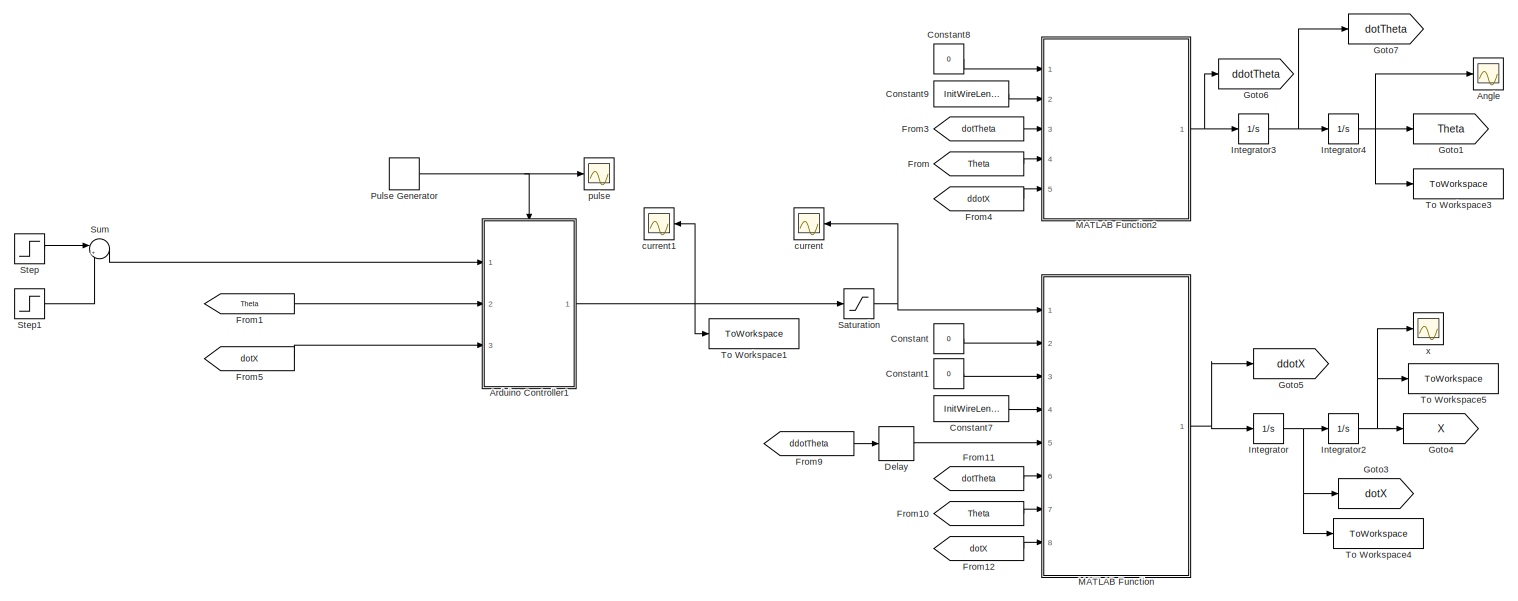
[diagram: root canvas - part 1/2, left side, full height]
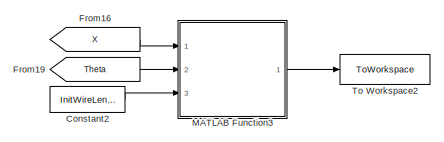
[diagram: root canvas - part 2/2, middle right region]
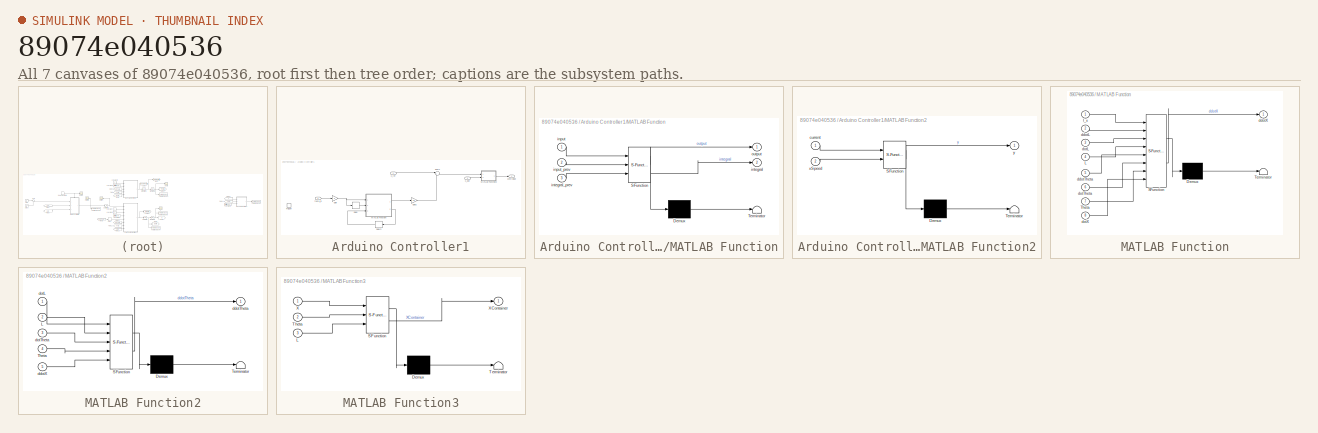
[diagram: thumbnail index - all 7 canvases of the model, root first then tree order]
MODEL slx_89074e040536
KIND model
CONFIG AbsTol = auto
CONFIG EnableMultiTasking = off
CONFIG FixedStep = auto
CONFIG MaxStep = auto
CONFIG MinStep = auto
CONFIG RelTol = 1e-3
CONFIG SampleTimeConstraint = Unconstrained
CONFIG SolverName = VariableStepAuto
CONFIG StartTime = 0.0
CONFIG StopTime = 10.0
BLOCK [Scope] Angle
  Floating = off
  NumInputPorts = 1
  Ports = [1]
  ScopeSpecificationString = Simulink.scopes.TimeScopeBlockCfg('CurrentConfiguration', extmgr.ConfigurationSet(extmgr.Configuration('Core','General UI',true),extmgr.Configuration('Core','Source UI',true),extmgr.Configuration('Sources','WiredSimulink',true,'DataLoggingVariableName','ScopeData1'),extmgr.Configuration('Visuals','Time Domain',true,'SerializedDisplays',{struct('MinYLimReal','-0.23748','MaxYLimReal','0.08037','YLab...<+1424ch>
BLOCK [SubSystem] Arduino Controller1
  Ports = [3, 1, 0, 1]
  RequestExecContextInheritance = off
BLOCK [Delay] Arduino Controller1/Delay
  DelayLength = 1
  InitialCondition = 0
  InputPortMap = u0
  Ports = [1, 1]
BLOCK [Delay] Arduino Controller1/Delay3
  DelayLength = 1
  InitialCondition = 0
  InputPortMap = u0
  NameLocation = top
  Ports = [1, 1]
BLOCK [Gain] Arduino Controller1/Gain
  Gain = -1
BLOCK [Gain] Arduino Controller1/Gain2
  Gain = 18
BLOCK [SubSystem] Arduino Controller1/MATLAB Function
  ErrorFcn = Stateflow.Translate.translate
  PermitHierarchicalResolution = ExplicitOnly
  Ports = [3, 2]
  RequestExecContextInheritance = off
  SFBlockType = MATLAB Function
  TreatAsAtomicUnit = on
BLOCK [Demux] Arduino Controller1/MATLAB Function/ Demux 
  Outputs = 1
  Ports = [1, 1]
BLOCK [S-Function] Arduino Controller1/MATLAB Function/ SFunction 
  EnableBusSupport = on
  FunctionName = sf_sfun
  PortCounts = [3 3]
  Ports = [3, 3]
  SFcnIsStateOwnerBlock = off
  SFunctionDeploymentMode = off
  Tag = Stateflow S-Function 6
BLOCK [Terminator] Arduino Controller1/MATLAB Function/ Terminator 
BLOCK [Inport] Arduino Controller1/MATLAB Function/input
BLOCK [Inport] Arduino Controller1/MATLAB Function/input_prev
  Port = 2
BLOCK [Outport] Arduino Controller1/MATLAB Function/integral
  Port = 2
BLOCK [Inport] Arduino Controller1/MATLAB Function/integral_prev
  Port = 3
BLOCK [Outport] Arduino Controller1/MATLAB Function/output
BLOCK [SubSystem] Arduino Controller1/MATLAB Function2
  ErrorFcn = Stateflow.Translate.translate
  PermitHierarchicalResolution = ExplicitOnly
  Ports = [2, 1]
  RequestExecContextInheritance = off
  SFBlockType = MATLAB Function
  TreatAsAtomicUnit = on
BLOCK [Demux] Arduino Controller1/MATLAB Function2/ Demux 
  Outputs = 1
  Ports = [1, 1]
BLOCK [S-Function] Arduino Controller1/MATLAB Function2/ SFunction 
  EnableBusSupport = on
  FunctionName = sf_sfun
  PortCounts = [2 2]
  Ports = [2, 2]
  SFcnIsStateOwnerBlock = off
  SFunctionDeploymentMode = off
  Tag = Stateflow S-Function 7
BLOCK [Terminator] Arduino Controller1/MATLAB Function2/ Terminator 
BLOCK [Inport] Arduino Controller1/MATLAB Function2/current
BLOCK [Inport] Arduino Controller1/MATLAB Function2/xSpeed
  Port = 2
BLOCK [Outport] Arduino Controller1/MATLAB Function2/y
BLOCK [Sum] Arduino Controller1/Sum1
  Inputs = |+-
  Ports = [2, 1]
BLOCK [TriggerPort] Arduino Controller1/Trigger
  PortDimensions = 1
  Ports = []
  StatesWhenEnabling = held
  VariantControl = (inherit)
BLOCK [Outport] Arduino Controller1/controlOut
BLOCK [Inport] Arduino Controller1/theta_in
  Port = 2
BLOCK [Inport] Arduino Controller1/x_dot
  Port = 3
BLOCK [Inport] Arduino Controller1/x_ref
BLOCK [Constant] Constant
  Value = 0
BLOCK [Constant] Constant1
  Value = 0
BLOCK [Constant] Constant2
  Value = InitWireLength
BLOCK [Constant] Constant7
  Value = InitWireLength
BLOCK [Constant] Constant8
  Value = 0
BLOCK [Constant] Constant9
  Value = InitWireLength
BLOCK [Delay] Delay
  DelayLength = 1
  InitialCondition = 0
  InputPortMap = u0
  Ports = [1, 1]
BLOCK [From] From
  GotoTag = Theta
BLOCK [From] From1
  GotoTag = Theta
BLOCK [From] From10
  GotoTag = Theta
BLOCK [From] From11
  GotoTag = dotTheta
BLOCK [From] From12
  GotoTag = dotX
BLOCK [From] From16
  GotoTag = X
BLOCK [From] From19
  GotoTag = Theta
BLOCK [From] From3
  GotoTag = dotTheta
BLOCK [From] From4
  GotoTag = ddotX
BLOCK [From] From5
  GotoTag = dotX
BLOCK [From] From9
  GotoTag = ddotTheta
BLOCK [Goto] Goto1
  GotoTag = Theta
BLOCK [Goto] Goto3
  GotoTag = dotX
BLOCK [Goto] Goto4
  GotoTag = X
BLOCK [Goto] Goto5
  GotoTag = ddotX
BLOCK [Goto] Goto6
  GotoTag = ddotTheta
BLOCK [Goto] Goto7
  GotoTag = dotTheta
BLOCK [Integrator] Integrator
  Ports = [1, 1]
BLOCK [Integrator] Integrator2
  InitialCondition = InitXPos
  Ports = [1, 1]
BLOCK [Integrator] Integrator3
  Ports = [1, 1]
BLOCK [Integrator] Integrator4
  Ports = [1, 1]
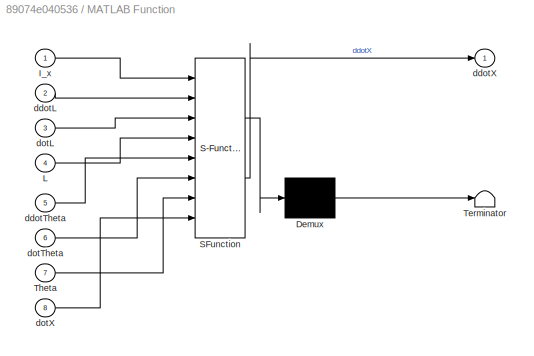
BLOCK [SubSystem] MATLAB Function
  ErrorFcn = Stateflow.Translate.translate
  PermitHierarchicalResolution = ExplicitOnly
  Ports = [8, 1]
  RequestExecContextInheritance = off
  SFBlockType = MATLAB Function
  TreatAsAtomicUnit = on
BLOCK [Demux] MATLAB Function/ Demux 
  Outputs = 1
  Ports = [1, 1]
BLOCK [S-Function] MATLAB Function/ SFunction 
  EnableBusSupport = on
  FunctionName = sf_sfun
  Parameters = B_x,J_x,cFrictionX,k_ex,m_l,m_t,r_x,sFrictionX
  PortCounts = [8 2]
  Ports = [8, 2]
  SFcnIsStateOwnerBlock = off
  SFunctionDeploymentMode = off
  Tag = Stateflow S-Function 2
BLOCK [Terminator] MATLAB Function/ Terminator 
BLOCK [Inport] MATLAB Function/I_x
BLOCK [Inport] MATLAB Function/L
  Port = 4
BLOCK [Inport] MATLAB Function/Theta
  Port = 7
BLOCK [Inport] MATLAB Function/ddotL
  Port = 2
BLOCK [Inport] MATLAB Function/ddotTheta
  Port = 5
BLOCK [Outport] MATLAB Function/ddotX
BLOCK [Inport] MATLAB Function/dotL
  Port = 3
BLOCK [Inport] MATLAB Function/dotTheta
  Port = 6
BLOCK [Inport] MATLAB Function/dotX
  Port = 8
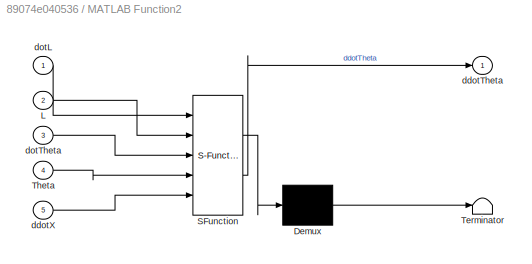
BLOCK [SubSystem] MATLAB Function2
  ErrorFcn = Stateflow.Translate.translate
  PermitHierarchicalResolution = ExplicitOnly
  Ports = [5, 1]
  RequestExecContextInheritance = off
  SFBlockType = MATLAB Function
  TreatAsAtomicUnit = on
BLOCK [Demux] MATLAB Function2/ Demux 
  Outputs = 1
  Ports = [1, 1]
BLOCK [S-Function] MATLAB Function2/ SFunction 
  EnableBusSupport = on
  FunctionName = sf_sfun
  Parameters = g
  PortCounts = [5 2]
  Ports = [5, 2]
  SFcnIsStateOwnerBlock = off
  SFunctionDeploymentMode = off
  Tag = Stateflow S-Function 3
BLOCK [Terminator] MATLAB Function2/ Terminator 
BLOCK [Inport] MATLAB Function2/L
  Port = 2
BLOCK [Inport] MATLAB Function2/Theta
  Port = 4
BLOCK [Outport] MATLAB Function2/ddotTheta
BLOCK [Inport] MATLAB Function2/ddotX
  Port = 5
BLOCK [Inport] MATLAB Function2/dotL
BLOCK [Inport] MATLAB Function2/dotTheta
  Port = 3
BLOCK [SubSystem] MATLAB Function3
  ErrorFcn = Stateflow.Translate.translate
  PermitHierarchicalResolution = ExplicitOnly
  Ports = [3, 1]
  RequestExecContextInheritance = off
  SFBlockType = MATLAB Function
  TreatAsAtomicUnit = on
BLOCK [Demux] MATLAB Function3/ Demux 
  Outputs = 1
  Ports = [1, 1]
BLOCK [S-Function] MATLAB Function3/ SFunction 
  EnableBusSupport = on
  FunctionName = sf_sfun
  PortCounts = [3 2]
  Ports = [3, 2]
  SFcnIsStateOwnerBlock = off
  SFunctionDeploymentMode = off
  Tag = Stateflow S-Function 4
BLOCK [Terminator] MATLAB Function3/ Terminator 
BLOCK [Inport] MATLAB Function3/L
  Port = 3
BLOCK [Inport] MATLAB Function3/Theta
  Port = 2
BLOCK [Inport] MATLAB Function3/X
BLOCK [Outport] MATLAB Function3/XContainer
BLOCK [DiscretePulseGenerator] Pulse Generator
  Period = .01
  Ports = [0, 1]
  PulseType = Time based
  PulseWidth = 5
BLOCK [Saturate] Saturation
  LowerLimit = -10
  UpperLimit = 10
BLOCK [Step] Step
  After = 5
  SampleTime = 0
  Time = 0
BLOCK [Step] Step1
  After = 5
  SampleTime = 0
BLOCK [Sum] Sum
  Inputs = |+-
  Ports = [2, 1]
BLOCK [ToWorkspace] To Workspace1
  FixptAsFi = on
  MaxDataPoints = inf
  Ports = [1]
  SampleTime = -1
  VariableName = ControllerCurrent
BLOCK [ToWorkspace] To Workspace2
  FixptAsFi = on
  MaxDataPoints = inf
  Ports = [1]
  SampleTime = -1
  VariableName = XContainer
BLOCK [ToWorkspace] To Workspace3
  FixptAsFi = on
  MaxDataPoints = inf
  Ports = [1]
  SampleTime = -1
  VariableName = Theta1
BLOCK [ToWorkspace] To Workspace4
  FixptAsFi = on
  MaxDataPoints = inf
  Ports = [1]
  SampleTime = -1
  VariableName = dotX1
BLOCK [ToWorkspace] To Workspace5
  FixptAsFi = on
  MaxDataPoints = inf
  Ports = [1]
  SampleTime = -1
  VariableName = X1
BLOCK [Scope] current
  Floating = off
  NameLocation = top
  NumInputPorts = 1
  Ports = [1]
  ScopeSpecificationString = Simulink.scopes.TimeScopeBlockCfg('CurrentConfiguration', extmgr.ConfigurationSet(extmgr.Configuration('Core','General UI',true),extmgr.Configuration('Core','Source UI',true),extmgr.Configuration('Sources','WiredSimulink',true,'DataLoggingVariableName','ScopeData2'),extmgr.Configuration('Visuals','Time Domain',true,'SerializedDisplays',{struct('MinYLimReal','-9.30537','MaxYLimReal','12.14504','YLa...<+1498ch>
BLOCK [Scope] current1
  Floating = off
  NameLocation = top
  NumInputPorts = 1
  Ports = [1]
  ScopeSpecificationString = Simulink.scopes.TimeScopeBlockCfg('CurrentConfiguration', extmgr.ConfigurationSet(extmgr.Configuration('Core','General UI',true),extmgr.Configuration('Core','Source UI',true),extmgr.Configuration('Sources','WiredSimulink',true,'DataLoggingVariableName','ScopeData3'),extmgr.Configuration('Visuals','Time Domain',true,'SerializedDisplays',{struct('MinYLimReal','-8.68654','MaxYLimReal','21.30254','YLa...<+1494ch>
BLOCK [Scope] pulse
  Floating = off
  NumInputPorts = 1
  Ports = [1]
  ScopeSpecificationString = Simulink.scopes.TimeScopeBlockCfg('CurrentConfiguration', extmgr.ConfigurationSet(extmgr.Configuration('Core','General UI',true),extmgr.Configuration('Core','Source UI',true),extmgr.Configuration('Sources','WiredSimulink',true,'DataLoggingVariableName','ScopeData4'),extmgr.Configuration('Visuals','Time Domain',true,'SerializedDisplays',{struct('MinYLimReal','-0.02536','MaxYLimReal','1.03263','YLab...<+1485ch>
BLOCK [Scope] x
  Floating = off
  NumInputPorts = 1
  Ports = [1]
  ScopeSpecificationString = Simulink.scopes.TimeScopeBlockCfg('CurrentConfiguration', extmgr.ConfigurationSet(extmgr.Configuration('Core','General UI',true),extmgr.Configuration('Core','Source UI',true),extmgr.Configuration('Sources','WiredSimulink',true),extmgr.Configuration('Visuals','Time Domain',true,'SerializedDisplays',{struct('MinYLimReal','0.26074','MaxYLimReal','2.45334','YLabelReal','','MinYLimMag','0.26074','MaxYL...<+1754ch>
LINE Arduino Controller1/Delay3:1 -> Arduino Controller1/MATLAB Function:3
LINE Arduino Controller1/Delay:1 -> Arduino Controller1/MATLAB Function:2
LINE Arduino Controller1/Gain2:1 -> Arduino Controller1/Sum1:2
NET Arduino Controller1/Gain:1 -> Arduino Controller1/Delay:1, Arduino Controller1/MATLAB Function:1
LINE Arduino Controller1/MATLAB Function2:1 -> Arduino Controller1/controlOut:1
LINE Arduino Controller1/MATLAB Function:1 -> Arduino Controller1/Gain2:1
LINE Arduino Controller1/MATLAB Function:2 -> Arduino Controller1/Delay3:1
LINE Arduino Controller1/Sum1:1 -> Arduino Controller1/MATLAB Function2:1
LINE Arduino Controller1/theta_in:1 -> Arduino Controller1/Gain:1
LINE Arduino Controller1/x_dot:1 -> Arduino Controller1/MATLAB Function2:2
LINE Arduino Controller1/x_ref:1 -> Arduino Controller1/Sum1:1
NET Arduino Controller1:1 -> Saturation:1, To Workspace1:1, current1:1
LINE Constant1:1 -> MATLAB Function:3
LINE Constant2:1 -> MATLAB Function3:3
LINE Constant7:1 -> MATLAB Function:4
LINE Constant8:1 -> MATLAB Function2:1
LINE Constant9:1 -> MATLAB Function2:2
LINE Constant:1 -> MATLAB Function:2
LINE Delay:1 -> MATLAB Function:5
LINE From10:1 -> MATLAB Function:7
LINE From11:1 -> MATLAB Function:6
LINE From12:1 -> MATLAB Function:8
LINE From16:1 -> MATLAB Function3:1
LINE From19:1 -> MATLAB Function3:2
LINE From1:1 -> Arduino Controller1:2
LINE From3:1 -> MATLAB Function2:3
LINE From4:1 -> MATLAB Function2:5
LINE From5:1 -> Arduino Controller1:3
LINE From9:1 -> Delay:1
LINE From:1 -> MATLAB Function2:4
NET Integrator2:1 -> Goto4:1, To Workspace5:1, x:1
NET Integrator3:1 -> Goto7:1, Integrator4:1
NET Integrator4:1 -> Angle:1, Goto1:1, To Workspace3:1
NET Integrator:1 -> Goto3:1, Integrator2:1, To Workspace4:1
NET MATLAB Function2:1 -> Goto6:1, Integrator3:1
LINE MATLAB Function3:1 -> To Workspace2:1
NET MATLAB Function:1 -> Goto5:1, Integrator:1
NET Pulse Generator:1 -> Arduino Controller1:trigger, pulse:1
NET Saturation:1 -> MATLAB Function:1, current:1
LINE Step1:1 -> Sum:2
LINE Step:1 -> Sum:1
LINE Sum:1 -> Arduino Controller1:1
note: NET lines group one-source signal fan-out (src -> all destinations, sorted); 1:1 wires keep LINE
CHART MATLAB Function states=1 transitions=1
  STATE_LABEL 'eML_blk_kernel()'
  STATE_LABEL 'SCRIPT:\nfunction ddotX = fcn5_10(I_x, ddotL, dotL, L, ddotTheta, dotTheta, Theta, dotX, J_x, r_x, k_ex, m_t, m_l, B_x,sFrictionX, cFrictionX)\n\nif(norm(dotX)<0.05)\n    friction = sFrictionX*sign(dotX);\nelse\n    friction = B_x*dotX+cFrictionX*sign(dotX);\nend\n\n\n\ntemp = I_x*k_ex/r_x;\n\ntemp = temp  - m_l*ddotL*sin(Theta);\n\ntemp= temp -2*m_l*dotL*dotTheta*cos(Theta);\n\ntemp = temp - m_l*L*ddotTheta*cos(T...<+131ch>'
CHART MATLAB Function2 states=1 transitions=1
  STATE_LABEL 'eML_blk_kernel()'
  STATE_LABEL 'SCRIPT:\nfunction ddotTheta = fcn5_7(dotL, L, dotTheta, Theta,ddotX,g)\n\ntemp = -2*dotL*dotTheta;\n\ntemp = temp - ddotX*cos(Theta);\n\ntemp = temp - g*sin(Theta);\n\ntemp = temp/L;\n\nddotTheta = temp;\n'
CHART MATLAB Function3 states=1 transitions=1
  STATE_LABEL 'eML_blk_kernel()'
  STATE_LABEL 'SCRIPT:\nfunction XContainer = fcn(X,Theta,L)\n\nXContainer = X + sin(Theta)*L;\n\n'
CHART Arduino Controller1/MATLAB Function states=1 transitions=1
  STATE_LABEL 'eML_blk_kernel()'
  STATE_LABEL 'SCRIPT:\nfunction [output, integral]= parallelPID(input, input_prev, integral_prev)\nP = .16;\nI = 0;\nD = 1;\ndeltaTime = .01;\n\nproportional = input*P;\nderivative = D*(input-input_prev)/deltaTime;\nintegral = integral_prev + I*input*deltaTime; \n\noutput = proportional+derivative+integral;\n\nend\n'
CHART Arduino Controller1/MATLAB Function2 states=1 transitions=1
  STATE_LABEL 'eML_blk_kernel()'
  STATE_LABEL 'SCRIPT:\nfunction y = fcn(current, xSpeed)\n    if (abs(current) < 0.2)\n        y = 0;\n    elseif (xSpeed < 0)\n        y = current - 2.24;\n    \n    elseif (xSpeed > 0)\n        y = current + 2.24;\n    else \n        y = current;\n    end\nend\n'
CHART  states=0 transitions=0
CHART  states=0 transitions=0
CHART  states=0 transitions=0
CHART  states=0 transitions=0
CHART  states=0 transitions=0
